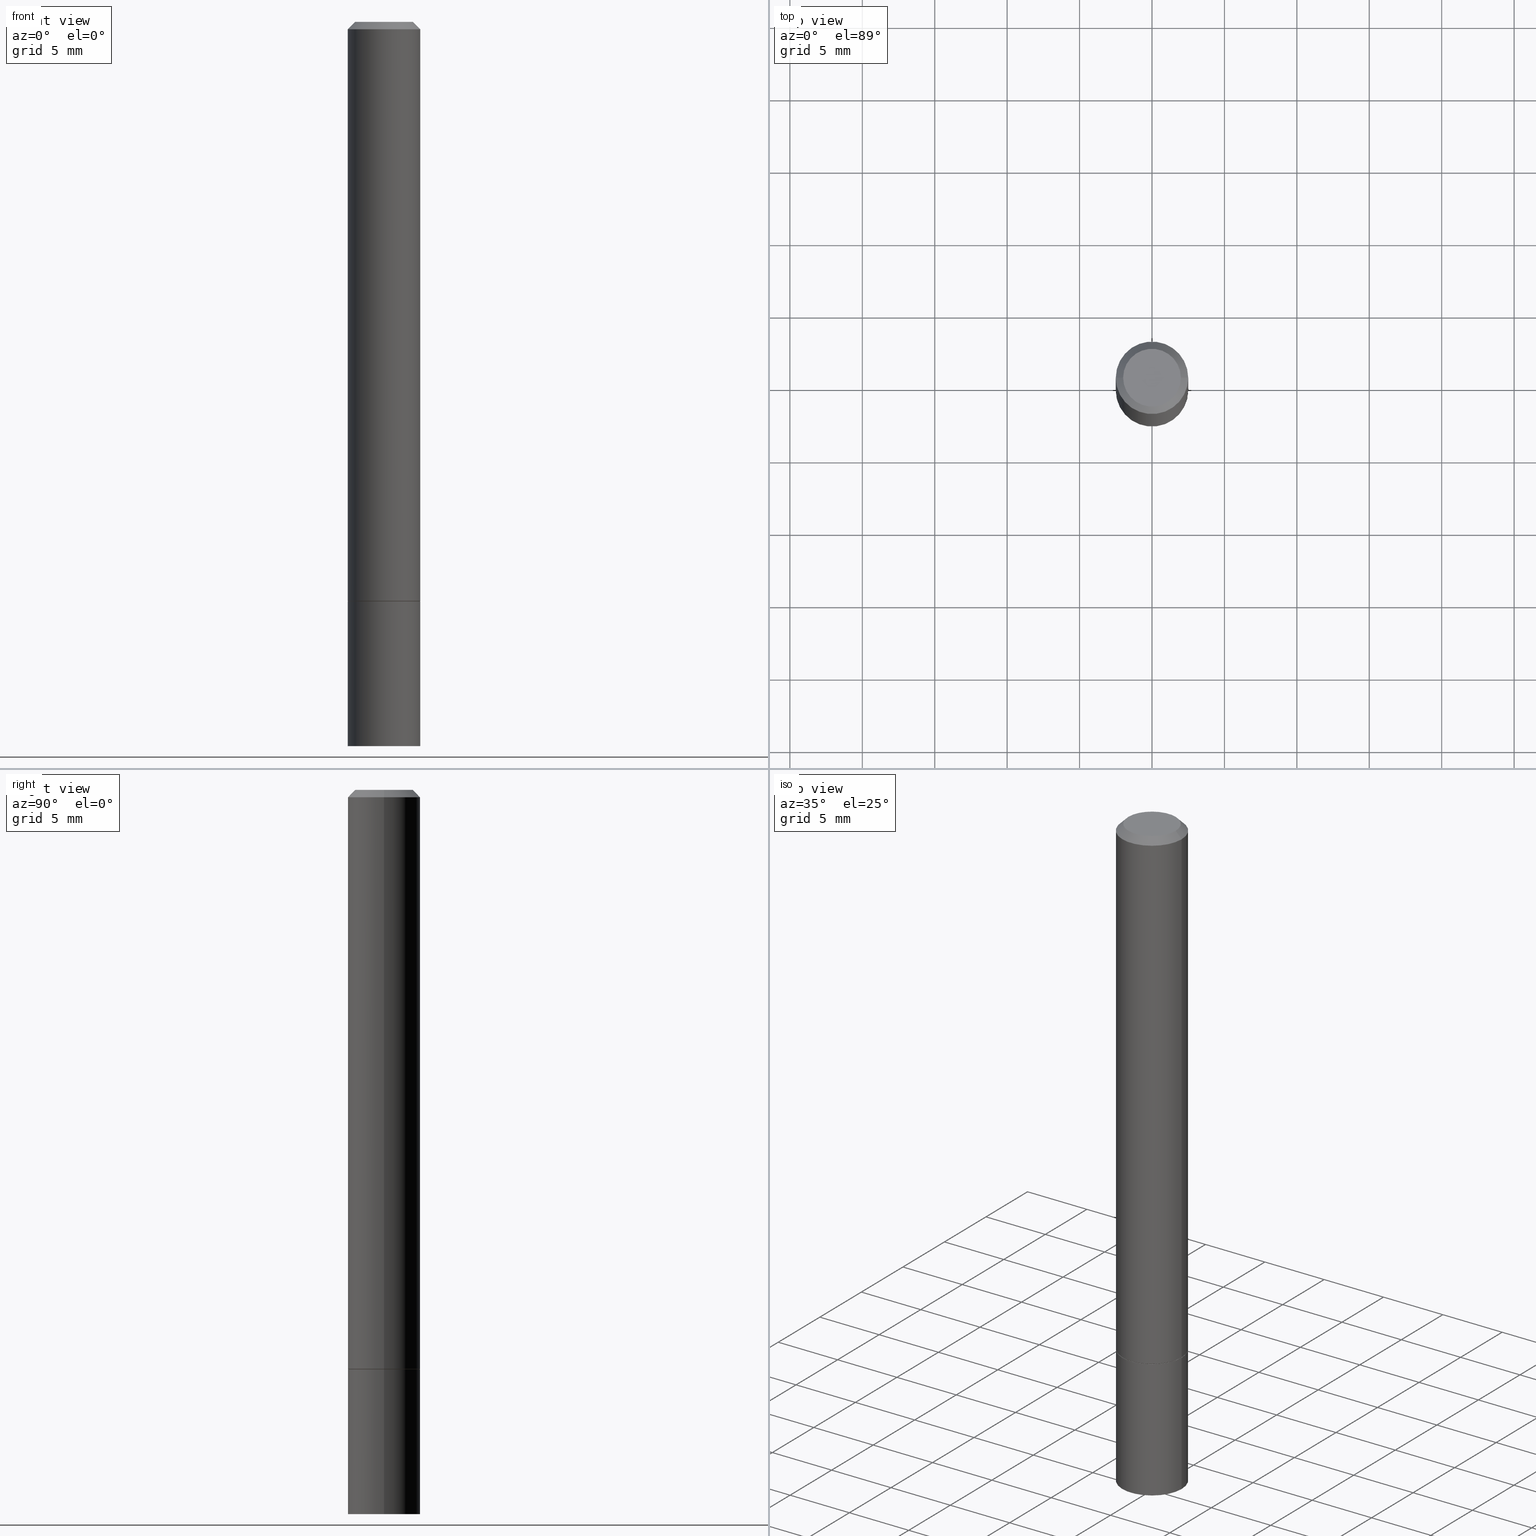
[diagram: canonical four-view strip — front | top / right | iso, engineering-drawing reading convention]
A machine part, canonical four-view strip (front | top / right | iso — engineering-drawing reading convention). The complete STEP part file that produces these views, byte-faithful:
ISO-10303-21;
HEADER;
FILE_DESCRIPTION (( 'STEP AP203' ),
    '1' );
FILE_NAME ('49186.STEP',
    '2024-02-28T16:45:07',
    ( '' ),
    ( '' ),
    'SwSTEP 2.0',
    'SolidWorks 2023',
    '' );
FILE_SCHEMA (( 'CONFIG_CONTROL_DESIGN' ));
ENDSEC;

DATA;
#1 = CARTESIAN_POINT ( 'NONE',  ( 0.09844999999999978768, -7.452456546574688288E-16, -0.02000000000000002123 ) ) ;
#2 = ORIENTED_EDGE ( 'NONE', *, *, #132, .T. ) ;
#3 = ORIENTED_EDGE ( 'NONE', *, *, #104, .F. ) ;
#4 = DIRECTION ( 'NONE',  ( -2.438088387897960049E-29, 3.491481338843145188E-15, 1.000000000000000000 ) ) ;
#5 = LOCAL_TIME ( 11, 45, 7.000000000000000000, #127 ) ;
#6 = LENGTH_MEASURE_WITH_UNIT ( LENGTH_MEASURE( 0.02539999999999999897 ), #310 );
#7 = EDGE_LOOP ( 'NONE', ( #120, #164, #189, #337 ) ) ;
#8 = ORIENTED_EDGE ( 'NONE', *, *, #10, .F. ) ;
#9 = ADVANCED_FACE ( 'NONE', ( #59 ), #166, .F. ) ;
#10 = EDGE_CURVE ( 'NONE', #318, #146, #68, .T. ) ;
#11 = FACE_OUTER_BOUND ( 'NONE', #219, .T. ) ;
#12 = DIRECTION ( 'NONE',  ( -2.445468806185136877E-29, 3.491481338843145188E-15, 1.000000000000000000 ) ) ;
#13 = AXIS2_PLACEMENT_3D ( 'NONE', #38, #16, #230 ) ;
#14 = DIRECTION ( 'NONE',  ( 2.438088387897960049E-29, -3.491481338843145188E-15, -1.000000000000000000 ) ) ;
#15 = DIRECTION ( 'NONE',  ( 1.000000000000000000, -6.982962677686265922E-15, 4.876176775795935793E-29 ) ) ;
#16 = DIRECTION ( 'NONE',  ( -2.445468806185136597E-29, 3.491481338843145583E-15, 1.000000000000000000 ) ) ;
#17 = LINE ( 'NONE', #150, #271 ) ;
#18 = ORIENTED_EDGE ( 'NONE', *, *, #110, .F. ) ;
#19 = APPROVAL_STATUS ( 'not_yet_approved' ) ;
#20 = ADVANCED_FACE ( 'NONE', ( #171 ), #190, .T. ) ;
#21 = FACE_OUTER_BOUND ( 'NONE', #7, .T. ) ;
#22 = VECTOR ( 'NONE', #280, 39.37007874015748143 ) ;
#23 = DATE_TIME_ROLE ( 'classification_date' ) ;
#24 = ORIENTED_EDGE ( 'NONE', *, *, #243, .T. ) ;
#25 = SECURITY_CLASSIFICATION ( '', '', #155 ) ;
#26 = CARTESIAN_POINT ( 'NONE',  ( 3.851124275980353916E-29, -5.498384812410186944E-15, -1.574800000000000422 ) ) ;
#27 = ORIENTED_EDGE ( 'NONE', *, *, #136, .T. ) ;
#28 = CALENDAR_DATE ( 2024, 28, 2 ) ;
#29 = ORIENTED_EDGE ( 'NONE', *, *, #301, .T. ) ;
#30 = DIRECTION ( 'NONE',  ( -2.445468806185136597E-29, 3.491481338843145583E-15, 1.000000000000000000 ) ) ;
#31 = CARTESIAN_POINT ( 'NONE',  ( 3.851124275980353916E-29, -5.498384812410186944E-15, -1.574800000000000422 ) ) ;
#32 = CIRCLE ( 'NONE', #357, 0.09844999999999999585 ) ;
#33 = PRODUCT_DEFINITION_FORMATION_WITH_SPECIFIED_SOURCE ( 'ANY', '', #228, .NOT_KNOWN. ) ;
#34 = PLANE ( 'NONE',  #258 ) ;
#35 = LINE ( 'NONE', #37, #206 ) ;
#36 = EDGE_CURVE ( 'NONE', #343, #318, #35, .T. ) ;
#37 = CARTESIAN_POINT ( 'NONE',  ( -0.09744999999999999496, -4.805960916411969841E-15, -1.574800000000000422 ) ) ;
#38 = CARTESIAN_POINT ( 'NONE',  ( 0.000000000000000000, 0.000000000000000000, 0.000000000000000000 ) ) ;
#39 = AXIS2_PLACEMENT_3D ( 'NONE', #237, #319, #354 ) ;
#40 = CONICAL_SURFACE ( 'NONE', #177, 0.09744999999999999496, 0.7853981633972775267 ) ;
#41 = CARTESIAN_POINT ( 'NONE',  ( 3.851124275980353916E-29, -5.498384812410186944E-15, -1.574800000000000422 ) ) ;
#42 = DIRECTION ( 'NONE',  ( -2.445468806185136597E-29, 3.491481338843145583E-15, 1.000000000000000000 ) ) ;
#43 = LINE ( 'NONE', #210, #126 ) ;
#44 = AXIS2_PLACEMENT_3D ( 'NONE', #276, #223, #85 ) ;
#45 = CARTESIAN_POINT ( 'NONE',  ( 0.000000000000000000, 0.000000000000000000, 0.000000000000000000 ) ) ;
#46 = PERSON_AND_ORGANIZATION_ROLE ( 'design_supplier' ) ;
#47 = LOCAL_TIME ( 11, 45, 7.000000000000000000, #65 ) ;
#48 = LINE ( 'NONE', #163, #114 ) ;
#49 = ORIENTED_EDGE ( 'NONE', *, *, #36, .F. ) ;
#50 = COORDINATED_UNIVERSAL_TIME_OFFSET ( 5, 0, .BEHIND. ) ;
#51 = EDGE_LOOP ( 'NONE', ( #303, #347 ) ) ;
#52 = CARTESIAN_POINT ( 'NONE',  ( 6.874726756182609764E-16, 0.09844999999999311247, -1.968500000000000361 ) ) ;
#53 = SHAPE_DEFINITION_REPRESENTATION ( #173, #100 ) ;
#54 = ADVANCED_FACE ( 'NONE', ( #118 ), #62, .T. ) ;
#55 = ORIENTED_EDGE ( 'NONE', *, *, #143, .T. ) ;
#56 = CARTESIAN_POINT ( 'NONE',  ( 4.890937612370278413E-31, -6.982962677686297772E-17, -0.02000000000000002123 ) ) ;
#57 = ORIENTED_EDGE ( 'NONE', *, *, #339, .T. ) ;
#58 = DIRECTION ( 'NONE',  ( 1.000000000000000000, -6.982962677686264344E-15, 0.000000000000000000 ) ) ;
#59 = FACE_OUTER_BOUND ( 'NONE', #251, .T. ) ;
#60 = AXIS2_PLACEMENT_3D ( 'NONE', #291, #290, #233 ) ;
#61 = ADVANCED_FACE ( 'NONE', ( #109 ), #82, .T. ) ;
#62 = CYLINDRICAL_SURFACE ( 'NONE', #273, 0.09844999999999999585 ) ;
#63 = CALENDAR_DATE ( 2024, 28, 2 ) ;
#64 = DIRECTION ( 'NONE',  ( 1.000000000000000000, -6.982962677686265922E-15, 0.000000000000000000 ) ) ;
#65 = COORDINATED_UNIVERSAL_TIME_OFFSET ( 5, 0, .BEHIND. ) ;
#66 = CARTESIAN_POINT ( 'NONE',  ( 4.890937612370278413E-31, -6.982962677686297772E-17, -0.02000000000000002123 ) ) ;
#67 = CARTESIAN_POINT ( 'NONE',  ( 3.848678807174168313E-29, -5.494893331071342359E-15, -1.573800000000000088 ) ) ;
#68 = CIRCLE ( 'NONE', #44, 0.09844999999999999585 ) ;
#69 = AXIS2_PLACEMENT_3D ( 'NONE', #272, #307, #267 ) ;
#70 = DIRECTION ( 'NONE',  ( -2.445468806185136597E-29, 3.491481338843145583E-15, 1.000000000000000000 ) ) ;
#71 = APPLICATION_CONTEXT ( 'configuration controlled 3d designs of mechanical parts and assemblies' ) ;
#72 = CYLINDRICAL_SURFACE ( 'NONE', #13, 0.09844999999999988483 ) ;
#73 = DIRECTION ( 'NONE',  ( -2.445468806185136597E-29, 3.491481338843145583E-15, 1.000000000000000000 ) ) ;
#74 = EDGE_CURVE ( 'NONE', #200, #343, #135, .T. ) ;
#75 = AXIS2_PLACEMENT_3D ( 'NONE', #92, #151, #88 ) ;
#76 = CC_DESIGN_PERSON_AND_ORGANIZATION_ASSIGNMENT ( #297, #46, ( #33 ) ) ;
#77 = PERSON_AND_ORGANIZATION ( #94, #350 ) ;
#78 = CARTESIAN_POINT ( 'NONE',  ( 3.851124275980353356E-29, -5.498384812410186155E-15, -1.574800000000000200 ) ) ;
#79 = DIRECTION ( 'NONE',  ( -2.445468806185136597E-29, 3.491481338843145583E-15, 1.000000000000000000 ) ) ;
#80 = APPROVAL_STATUS ( 'not_yet_approved' ) ;
#81 = LOCAL_TIME ( 11, 45, 7.000000000000000000, #50 ) ;
#82 = PLANE ( 'NONE',  #236 ) ;
#83 = VECTOR ( 'NONE', #196, 39.37007874015748143 ) ;
#84 = ORIENTED_EDGE ( 'NONE', *, *, #315, .T. ) ;
#85 = DIRECTION ( 'NONE',  ( 1.000000000000000000, -6.982962677686265922E-15, 0.000000000000000000 ) ) ;
#86 = DIRECTION ( 'NONE',  ( 2.445468806185136597E-29, -3.491481338843145583E-15, -1.000000000000000000 ) ) ;
#87 = VERTEX_POINT ( 'NONE', #175 ) ;
#88 = DIRECTION ( 'NONE',  ( 1.000000000000000000, 0.000000000000000000, 0.000000000000000000 ) ) ;
#89 = CC_DESIGN_DATE_AND_TIME_ASSIGNMENT ( #129, #240, ( #325 ) ) ;
#90 = VERTEX_POINT ( 'NONE', #202 ) ;
#91 = CIRCLE ( 'NONE', #238, 0.09844999999999978768 ) ;
#92 = CARTESIAN_POINT ( 'NONE',  ( 0.000000000000000000, 0.000000000000000000, 0.000000000000000000 ) ) ;
#93 = DIRECTION ( 'NONE',  ( -2.445468806185136597E-29, 3.491481338843145583E-15, 1.000000000000000000 ) ) ;
#94 = PERSON ( 'UNSPECIFIED', 'UNSPECIFIED', 'UNSPECIFIED', ('UNSPECIFIED'), ('UNSPECIFIED'), ('UNSPECIFIED') ) ;
#95 = PERSON_AND_ORGANIZATION ( #94, #350 ) ;
#96 = CARTESIAN_POINT ( 'NONE',  ( -0.09844999999999999585, -5.486153590605640426E-15, -1.574800000000000200 ) ) ;
#97 = DIRECTION ( 'NONE',  ( 1.000000000000000000, -6.982962677686264344E-15, 0.000000000000000000 ) ) ;
#98 = AXIS2_PLACEMENT_3D ( 'NONE', #336, #306, #331 ) ;
#99 = MECHANICAL_CONTEXT ( 'NONE', #71, 'mechanical' ) ;
#100 = ADVANCED_BREP_SHAPE_REPRESENTATION ( '49186', ( #117, #364, #75 ), #279 ) ;
#101 = CARTESIAN_POINT ( 'NONE',  ( 0.09844999999999978768, -7.452456546574688288E-16, -0.02000000000000002123 ) ) ;
#102 = PERSON_AND_ORGANIZATION_ROLE ( 'creator' ) ;
#103 = CARTESIAN_POINT ( 'NONE',  ( 0.07844999999999981155, -6.417258612913221441E-16, 4.159044147803931210E-30 ) ) ;
#104 = EDGE_CURVE ( 'NONE', #304, #226, #140, .T. ) ;
#105 = AXIS2_PLACEMENT_3D ( 'NONE', #178, #207, #352 ) ;
#106 = PERSON_AND_ORGANIZATION_ROLE ( 'classification_officer' ) ;
#107 = AXIS2_PLACEMENT_3D ( 'NONE', #31, #4, #115 ) ;
#108 = ORIENTED_EDGE ( 'NONE', *, *, #143, .F. ) ;
#109 = FACE_OUTER_BOUND ( 'NONE', #51, .T. ) ;
#110 = EDGE_CURVE ( 'NONE', #180, #277, #270, .T. ) ;
#111 = DIRECTION ( 'NONE',  ( 1.000000000000000000, -6.982962677686266711E-15, 0.000000000000000000 ) ) ;
#112 = ORIENTED_EDGE ( 'NONE', *, *, #235, .T. ) ;
#113 = VECTOR ( 'NONE', #259, 39.37007874015748143 ) ;
#114 = VECTOR ( 'NONE', #145, 39.37007874015748143 ) ;
#115 = DIRECTION ( 'NONE',  ( 1.000000000000000000, -6.982962677686265922E-15, 4.876176775795935793E-29 ) ) ;
#116 = ORIENTED_EDGE ( 'NONE', *, *, #183, .T. ) ;
#117 = MANIFOLD_SOLID_BREP ( 'Body-Move/Copy2[1]', #199 ) ;
#118 = FACE_OUTER_BOUND ( 'NONE', #342, .T. ) ;
#119 = DIRECTION ( 'NONE',  ( 1.000000000000000000, -6.982962677686265922E-15, 0.000000000000000000 ) ) ;
#120 = ORIENTED_EDGE ( 'NONE', *, *, #74, .T. ) ;
#121 = FACE_OUTER_BOUND ( 'NONE', #344, .T. ) ;
#122 = ADVANCED_FACE ( 'NONE', ( #265 ), #356, .T. ) ;
#123 = CARTESIAN_POINT ( 'NONE',  ( 0.09844999999999999585, -6.874726756182129545E-16, 4.800596035771099214E-30 ) ) ;
#124 = DIRECTION ( 'NONE',  ( -2.445468806185136877E-29, 3.491481338843145188E-15, 1.000000000000000000 ) ) ;
#125 = AXIS2_PLACEMENT_3D ( 'NONE', #147, #152, #205 ) ;
#126 = VECTOR ( 'NONE', #124, 39.37007874015748143 ) ;
#127 = COORDINATED_UNIVERSAL_TIME_OFFSET ( 5, 0, .BEHIND. ) ;
#128 = CARTESIAN_POINT ( 'NONE',  ( 0.09844999999999999585, -7.560453691130944267E-15, -1.968500000000000139 ) ) ;
#129 = DATE_AND_TIME ( #363, #47 ) ;
#130 = AXIS2_PLACEMENT_3D ( 'NONE', #26, #30, #58 ) ;
#131 = APPROVAL_ROLE ( '' ) ;
#132 = EDGE_CURVE ( 'NONE', #146, #318, #335, .T. ) ;
#133 = ORIENTED_EDGE ( 'NONE', *, *, #289, .T. ) ;
#134 = APPROVAL_DATE_TIME ( #159, #203 ) ;
#135 = CIRCLE ( 'NONE', #349, 0.09744999999999999496 ) ;
#136 = EDGE_CURVE ( 'NONE', #249, #90, #32, .T. ) ;
#137 = APPLICATION_PROTOCOL_DEFINITION ( 'international standard', 'config_control_design', 1994, #71 ) ;
#138 = DIRECTION ( 'NONE',  ( 2.438088387897960049E-29, -3.491481338843145188E-15, -1.000000000000000000 ) ) ;
#139 = ORIENTED_EDGE ( 'NONE', *, *, #245, .F. ) ;
#140 = CIRCLE ( 'NONE', #221, 0.07844999999999981155 ) ;
#141 = CIRCLE ( 'NONE', #250, 0.09844999999999999585 ) ;
#142 = ORIENTED_EDGE ( 'NONE', *, *, #284, .F. ) ;
#143 = EDGE_CURVE ( 'NONE', #249, #87, #327, .T. ) ;
#144 = EDGE_LOOP ( 'NONE', ( #133, #334 ) ) ;
#145 = DIRECTION ( 'NONE',  ( 0.7071067811864267805, -2.468850131080992517E-15, 0.7071067811866682540 ) ) ;
#146 = VERTEX_POINT ( 'NONE', #153 ) ;
#147 = CARTESIAN_POINT ( 'NONE',  ( 0.000000000000000000, 0.000000000000000000, 0.000000000000000000 ) ) ;
#148 = DIMENSIONAL_EXPONENTS ( 1.000000000000000000, 0.000000000000000000, 0.000000000000000000, 0.000000000000000000, 0.000000000000000000, 0.000000000000000000, 0.000000000000000000 ) ;
#149 = DIRECTION ( 'NONE',  ( 1.000000000000000000, -6.982962677686264344E-15, 0.000000000000000000 ) ) ;
#150 = CARTESIAN_POINT ( 'NONE',  ( 0.09844999999999988483, -6.874726756182121656E-16, 4.800596035771093609E-30 ) ) ;
#151 = DIRECTION ( 'NONE',  ( 0.000000000000000000, 0.000000000000000000, 1.000000000000000000 ) ) ;
#152 = DIRECTION ( 'NONE',  ( -2.445468806185136597E-29, 3.491481338843145583E-15, 1.000000000000000000 ) ) ;
#153 = CARTESIAN_POINT ( 'NONE',  ( 0.09844999999999999585, -6.182366006689555708E-15, -1.573800000000000088 ) ) ;
#154 = DIRECTION ( 'NONE',  ( -2.445468806185136597E-29, 3.491481338843145583E-15, 1.000000000000000000 ) ) ;
#155 = SECURITY_CLASSIFICATION_LEVEL ( 'unclassified' ) ;
#156 = AXIS2_PLACEMENT_3D ( 'NONE', #56, #86, #195 ) ;
#157 = PERSON_AND_ORGANIZATION ( #94, #350 ) ;
#158 = APPROVAL_ROLE ( '' ) ;
#159 = DATE_AND_TIME ( #28, #161 ) ;
#160 = AXIS2_PLACEMENT_3D ( 'NONE', #67, #42, #119 ) ;
#161 = LOCAL_TIME ( 11, 45, 7.000000000000000000, #338 ) ;
#162 =( NAMED_UNIT ( * ) SI_UNIT ( $, .STERADIAN. ) SOLID_ANGLE_UNIT ( ) );
#163 = CARTESIAN_POINT ( 'NONE',  ( 0.09744999999999999496, -6.178874525350713489E-15, -1.574800000000000422 ) ) ;
#164 = ORIENTED_EDGE ( 'NONE', *, *, #36, .T. ) ;
#165 =( CONVERSION_BASED_UNIT ( 'INCH', #6 ) LENGTH_UNIT ( ) NAMED_UNIT ( #148 ) );
#166 = PLANE ( 'NONE',  #107 ) ;
#167 = DIRECTION ( 'NONE',  ( -1.000000000000000000, 6.982962677686266711E-15, 0.000000000000000000 ) ) ;
#168 = VECTOR ( 'NONE', #359, 39.37007874015748143 ) ;
#169 = APPROVAL_PERSON_ORGANIZATION ( #241, #355, #131 ) ;
#170 = CARTESIAN_POINT ( 'NONE',  ( -0.09844999999999999585, -2.082832155568281168E-15, -1.573800000000000088 ) ) ;
#171 = FACE_OUTER_BOUND ( 'NONE', #275, .T. ) ;
#172 = CARTESIAN_POINT ( 'NONE',  ( 0.000000000000000000, 0.000000000000000000, 0.000000000000000000 ) ) ;
#173 = PRODUCT_DEFINITION_SHAPE ( 'NONE', 'NONE',  #325 ) ;
#174 = ADVANCED_FACE ( 'NONE', ( #121 ), #72, .T. ) ;
#175 = CARTESIAN_POINT ( 'NONE',  ( 0.09844999999999999585, -6.185857488028398715E-15, -1.574800000000000200 ) ) ;
#176 = LINE ( 'NONE', #292, #168 ) ;
#177 = AXIS2_PLACEMENT_3D ( 'NONE', #41, #73, #149 ) ;
#178 = CARTESIAN_POINT ( 'NONE',  ( 4.813905344975441835E-29, -6.872981015512731707E-15, -1.968500000000000139 ) ) ;
#179 = CARTESIAN_POINT ( 'NONE',  ( 3.851124275980353916E-29, -5.498384812410186944E-15, -1.574800000000000422 ) ) ;
#180 = VERTEX_POINT ( 'NONE', #101 ) ;
#181 = FACE_OUTER_BOUND ( 'NONE', #144, .T. ) ;
#182 = CARTESIAN_POINT ( 'NONE',  ( -0.09844999999999978768, 6.176430488413484730E-16, -0.02000000000000002123 ) ) ;
#183 = EDGE_CURVE ( 'NONE', #90, #249, #211, .T. ) ;
#184 = DIRECTION ( 'NONE',  ( 1.000000000000000000, -6.982962677686265922E-15, 0.000000000000000000 ) ) ;
#185 = ORIENTED_EDGE ( 'NONE', *, *, #315, .F. ) ;
#186 = CIRCLE ( 'NONE', #130, 0.09744999999999999496 ) ;
#187 = CC_DESIGN_PERSON_AND_ORGANIZATION_ASSIGNMENT ( #351, #201, ( #325 ) ) ;
#188 = EDGE_LOOP ( 'NONE', ( #27, #84, #365, #108 ) ) ;
#189 = ORIENTED_EDGE ( 'NONE', *, *, #132, .F. ) ;
#190 = CONICAL_SURFACE ( 'NONE', #293, 0.09844999999999978768, 0.7853981633974471688 ) ;
#191 = ORIENTED_EDGE ( 'NONE', *, *, #284, .T. ) ;
#192 = ORIENTED_EDGE ( 'NONE', *, *, #235, .F. ) ;
#193 = ADVANCED_FACE ( 'NONE', ( #239 ), #232, .T. ) ;
#194 = DIRECTION ( 'NONE',  ( 2.445468806185136597E-29, -3.491481338843145583E-15, -1.000000000000000000 ) ) ;
#195 = DIRECTION ( 'NONE',  ( -1.000000000000000000, 6.982962677686266711E-15, 0.000000000000000000 ) ) ;
#196 = DIRECTION ( 'NONE',  ( -2.445468806185136877E-29, 3.491481338843145188E-15, 1.000000000000000000 ) ) ;
#197 = APPLICATION_CONTEXT ( 'configuration controlled 3d designs of mechanical parts and assemblies' ) ;
#198 = VERTEX_POINT ( 'NONE', #96 ) ;
#199 = CLOSED_SHELL ( 'NONE', ( #193, #61, #266, #54 ) ) ;
#200 = VERTEX_POINT ( 'NONE', #261 ) ;
#201 = PERSON_AND_ORGANIZATION_ROLE ( 'creator' ) ;
#202 = CARTESIAN_POINT ( 'NONE',  ( -0.09844999999999999585, -5.486153590605640426E-15, -1.968500000000000139 ) ) ;
#203 = APPROVAL ( #80, 'UNSPECIFIED' ) ;
#204 = PERSON_AND_ORGANIZATION_ROLE ( 'design_owner' ) ;
#205 = DIRECTION ( 'NONE',  ( 1.000000000000000000, -6.982962677686266711E-15, 4.876176775795936353E-29 ) ) ;
#206 = VECTOR ( 'NONE', #254, 39.37007874015748143 ) ;
#207 = DIRECTION ( 'NONE',  ( -2.445468806185136597E-29, 3.491481338843145583E-15, 1.000000000000000000 ) ) ;
#208 = CONICAL_SURFACE ( 'NONE', #156, 0.09844999999999978768, 0.7853981633974471688 ) ;
#209 = FACE_OUTER_BOUND ( 'NONE', #246, .T. ) ;
#210 = CARTESIAN_POINT ( 'NONE',  ( -0.09844999999999988483, 6.995293233558178146E-16, -4.842691596355949137E-30 ) ) ;
#211 = CIRCLE ( 'NONE', #105, 0.09844999999999999585 ) ;
#212 = COORDINATED_UNIVERSAL_TIME_OFFSET ( 5, 0, .BEHIND. ) ;
#213 = ORIENTED_EDGE ( 'NONE', *, *, #104, .T. ) ;
#214 = CALENDAR_DATE ( 2024, 28, 2 ) ;
#215 = CC_DESIGN_PERSON_AND_ORGANIZATION_ASSIGNMENT ( #95, #204, ( #228 ) ) ;
#216 = ADVANCED_FACE ( 'NONE', ( #21 ), #264, .T. ) ;
#217 =( NAMED_UNIT ( * ) PLANE_ANGLE_UNIT ( ) SI_UNIT ( $, .RADIAN. ) );
#218 = ORIENTED_EDGE ( 'NONE', *, *, #243, .F. ) ;
#219 = EDGE_LOOP ( 'NONE', ( #213, #191 ) ) ;
#220 = CC_DESIGN_PERSON_AND_ORGANIZATION_ASSIGNMENT ( #77, #102, ( #33 ) ) ;
#221 = AXIS2_PLACEMENT_3D ( 'NONE', #45, #326, #15 ) ;
#222 = CIRCLE ( 'NONE', #69, 0.09844999999999999585 ) ;
#223 = DIRECTION ( 'NONE',  ( -2.445468806185136597E-29, 3.491481338843145583E-15, 1.000000000000000000 ) ) ;
#224 = CARTESIAN_POINT ( 'NONE',  ( 5.478134220644862595E-16, 0.07844999999999981155, -2.739067110322441158E-16 ) ) ;
#225 = CARTESIAN_POINT ( 'NONE',  ( 4.890937612370278413E-31, -6.982962677686297772E-17, -0.02000000000000002123 ) ) ;
#226 = VERTEX_POINT ( 'NONE', #103 ) ;
#227 = APPROVAL_DATE_TIME ( #255, #252 ) ;
#228 = PRODUCT ( '49186', '49186', '', ( #99 ) ) ;
#229 = APPROVAL_PERSON_ORGANIZATION ( #157, #203, #158 ) ;
#230 = DIRECTION ( 'NONE',  ( 1.000000000000000000, -6.982962677686266711E-15, 4.876176775795936353E-29 ) ) ;
#231 = DIRECTION ( 'NONE',  ( -1.000000000000000000, 6.982962677686265922E-15, -4.876176775795935793E-29 ) ) ;
#232 = CYLINDRICAL_SURFACE ( 'NONE', #60, 0.09844999999999999585 ) ;
#233 = DIRECTION ( 'NONE',  ( 1.000000000000000000, -6.982962677686266711E-15, 4.876176775795936353E-29 ) ) ;
#234 = CC_DESIGN_PERSON_AND_ORGANIZATION_ASSIGNMENT ( #242, #106, ( #25 ) ) ;
#235 = EDGE_CURVE ( 'NONE', #146, #180, #17, .T. ) ;
#236 = AXIS2_PLACEMENT_3D ( 'NONE', #52, #138, #360 ) ;
#237 = CARTESIAN_POINT ( 'NONE',  ( 4.890937612370278413E-31, -6.982962677686297772E-17, -0.02000000000000002123 ) ) ;
#238 = AXIS2_PLACEMENT_3D ( 'NONE', #66, #281, #111 ) ;
#239 = FACE_OUTER_BOUND ( 'NONE', #188, .T. ) ;
#240 = DATE_TIME_ROLE ( 'creation_date' ) ;
#241 = PERSON_AND_ORGANIZATION ( #94, #350 ) ;
#242 = PERSON_AND_ORGANIZATION ( #94, #350 ) ;
#243 = EDGE_CURVE ( 'NONE', #304, #277, #176, .T. ) ;
#244 = EDGE_LOOP ( 'NONE', ( #142, #57, #282, #218 ) ) ;
#245 = EDGE_CURVE ( 'NONE', #318, #277, #43, .T. ) ;
#246 = EDGE_LOOP ( 'NONE', ( #49, #247, #29, #8 ) ) ;
#247 = ORIENTED_EDGE ( 'NONE', *, *, #362, .T. ) ;
#248 = ORIENTED_EDGE ( 'NONE', *, *, #278, .F. ) ;
#249 = VERTEX_POINT ( 'NONE', #128 ) ;
#250 = AXIS2_PLACEMENT_3D ( 'NONE', #78, #79, #184 ) ;
#251 = EDGE_LOOP ( 'NONE', ( #311, #308 ) ) ;
#252 = APPROVAL ( #19, 'UNSPECIFIED' ) ;
#253 = LINE ( 'NONE', #1, #22 ) ;
#254 = DIRECTION ( 'NONE',  ( -0.7071067811864267805, 7.493145998869918709E-15, 0.7071067811866682540 ) ) ;
#255 = DATE_AND_TIME ( #63, #5 ) ;
#256 = DIRECTION ( 'NONE',  ( 1.000000000000000000, -6.982962677686266711E-15, 4.876176775795936353E-29 ) ) ;
#257 = APPROVAL_ROLE ( '' ) ;
#258 = AXIS2_PLACEMENT_3D ( 'NONE', #224, #14, #231 ) ;
#259 = DIRECTION ( 'NONE',  ( -2.445468806185136877E-29, 3.491481338843145188E-15, 1.000000000000000000 ) ) ;
#260 = LINE ( 'NONE', #321, #83 ) ;
#261 = CARTESIAN_POINT ( 'NONE',  ( 0.09744999999999999496, -6.178874525350713489E-15, -1.574800000000000422 ) ) ;
#262 = ADVANCED_FACE ( 'NONE', ( #209 ), #40, .T. ) ;
#263 = DIRECTION ( 'NONE',  ( -2.445468806185136597E-29, 3.491481338843145583E-15, 1.000000000000000000 ) ) ;
#264 = CONICAL_SURFACE ( 'NONE', #302, 0.09744999999999999496, 0.7853981633972775267 ) ;
#265 = FACE_OUTER_BOUND ( 'NONE', #340, .T. ) ;
#266 = ADVANCED_FACE ( 'NONE', ( #181 ), #294, .F. ) ;
#267 = DIRECTION ( 'NONE',  ( 1.000000000000000000, -6.982962677686265922E-15, 0.000000000000000000 ) ) ;
#268 = DIRECTION ( 'NONE',  ( 1.000000000000000000, -6.982962677686265922E-15, 4.876176775795935793E-29 ) ) ;
#269 = ORIENTED_EDGE ( 'NONE', *, *, #333, .F. ) ;
#270 = CIRCLE ( 'NONE', #39, 0.09844999999999978768 ) ;
#271 = VECTOR ( 'NONE', #12, 39.37007874015748143 ) ;
#272 = CARTESIAN_POINT ( 'NONE',  ( 3.851124275980353356E-29, -5.498384812410186155E-15, -1.574800000000000200 ) ) ;
#273 = AXIS2_PLACEMENT_3D ( 'NONE', #172, #286, #256 ) ;
#274 = LOCAL_TIME ( 11, 45, 7.000000000000000000, #212 ) ;
#275 = EDGE_LOOP ( 'NONE', ( #346, #3, #24, #314 ) ) ;
#276 = CARTESIAN_POINT ( 'NONE',  ( 3.848678807174168313E-29, -5.494893331071342359E-15, -1.573800000000000088 ) ) ;
#277 = VERTEX_POINT ( 'NONE', #182 ) ;
#278 = EDGE_CURVE ( 'NONE', #198, #87, #222, .T. ) ;
#279 =( GEOMETRIC_REPRESENTATION_CONTEXT ( 3 ) GLOBAL_UNCERTAINTY_ASSIGNED_CONTEXT ( ( #298 ) ) GLOBAL_UNIT_ASSIGNED_CONTEXT ( ( #165, #217, #162 ) ) REPRESENTATION_CONTEXT ( 'NONE', 'WORKASPACE' ) );
#280 = DIRECTION ( 'NONE',  ( 0.7071067811865466846, -7.319954787623252890E-15, -0.7071067811865483499 ) ) ;
#281 = DIRECTION ( 'NONE',  ( -2.445468806185136597E-29, 3.491481338843145583E-15, 1.000000000000000000 ) ) ;
#282 = ORIENTED_EDGE ( 'NONE', *, *, #110, .T. ) ;
#283 = PRODUCT_RELATED_PRODUCT_CATEGORY ( 'detail', '', ( #228 ) ) ;
#284 = EDGE_CURVE ( 'NONE', #226, #304, #358, .T. ) ;
#285 = CARTESIAN_POINT ( 'NONE',  ( -0.07844999999999981155, 5.827282354529173170E-16, -3.953055038153090764E-30 ) ) ;
#286 = DIRECTION ( 'NONE',  ( -2.445468806185136597E-29, 3.491481338843145583E-15, 1.000000000000000000 ) ) ;
#287 = CARTESIAN_POINT ( 'NONE',  ( 4.813905344975441835E-29, -6.872981015512731707E-15, -1.968500000000000139 ) ) ;
#288 = APPROVAL_PERSON_ORGANIZATION ( #320, #252, #257 ) ;
#289 = EDGE_CURVE ( 'NONE', #87, #198, #141, .T. ) ;
#290 = DIRECTION ( 'NONE',  ( -2.445468806185136597E-29, 3.491481338843145583E-15, 1.000000000000000000 ) ) ;
#291 = CARTESIAN_POINT ( 'NONE',  ( 0.000000000000000000, 0.000000000000000000, 0.000000000000000000 ) ) ;
#292 = CARTESIAN_POINT ( 'NONE',  ( -0.09844999999999978768, 6.176430488413484730E-16, -0.02000000000000002123 ) ) ;
#293 = AXIS2_PLACEMENT_3D ( 'NONE', #225, #194, #167 ) ;
#294 = PLANE ( 'NONE',  #98 ) ;
#295 = CC_DESIGN_DATE_AND_TIME_ASSIGNMENT ( #332, #23, ( #25 ) ) ;
#296 = CARTESIAN_POINT ( 'NONE',  ( 0.000000000000000000, 0.000000000000000000, 0.000000000000000000 ) ) ;
#297 = PERSON_AND_ORGANIZATION ( #94, #350 ) ;
#298 = UNCERTAINTY_MEASURE_WITH_UNIT (LENGTH_MEASURE( 1.000000000000000082E-05 ), #165, 'distance_accuracy_value', 'NONE');
#299 = CALENDAR_DATE ( 2024, 28, 2 ) ;
#300 = CLOSED_SHELL ( 'NONE', ( #216, #174, #353, #20, #122, #262, #9, #312 ) ) ;
#301 = EDGE_CURVE ( 'NONE', #200, #146, #48, .T. ) ;
#302 = AXIS2_PLACEMENT_3D ( 'NONE', #322, #263, #97 ) ;
#303 = ORIENTED_EDGE ( 'NONE', *, *, #136, .F. ) ;
#304 = VERTEX_POINT ( 'NONE', #285 ) ;
#305 = APPROVAL_DATE_TIME ( #330, #355 ) ;
#306 = DIRECTION ( 'NONE',  ( 2.438088387897960049E-29, -3.491481338843145188E-15, -1.000000000000000000 ) ) ;
#307 = DIRECTION ( 'NONE',  ( -2.445468806185136597E-29, 3.491481338843145583E-15, 1.000000000000000000 ) ) ;
#308 = ORIENTED_EDGE ( 'NONE', *, *, #362, .F. ) ;
#309 = CC_DESIGN_APPROVAL ( #355, ( #33 ) ) ;
#310 =( LENGTH_UNIT ( ) NAMED_UNIT ( * ) SI_UNIT ( $, .METRE. ) );
#311 = ORIENTED_EDGE ( 'NONE', *, *, #74, .F. ) ;
#312 = ADVANCED_FACE ( 'NONE', ( #11 ), #34, .F. ) ;
#313 = ORIENTED_EDGE ( 'NONE', *, *, #245, .T. ) ;
#314 = ORIENTED_EDGE ( 'NONE', *, *, #333, .T. ) ;
#315 = EDGE_CURVE ( 'NONE', #90, #198, #260, .T. ) ;
#316 = CC_DESIGN_APPROVAL ( #252, ( #325 ) ) ;
#317 = APPLICATION_PROTOCOL_DEFINITION ( 'international standard', 'config_control_design', 1994, #197 ) ;
#318 = VERTEX_POINT ( 'NONE', #170 ) ;
#319 = DIRECTION ( 'NONE',  ( -2.445468806185136597E-29, 3.491481338843145583E-15, 1.000000000000000000 ) ) ;
#320 = PERSON_AND_ORGANIZATION ( #94, #350 ) ;
#321 = CARTESIAN_POINT ( 'NONE',  ( -0.09844999999999999585, 6.995293233558186035E-16, -4.842691596355954042E-30 ) ) ;
#322 = CARTESIAN_POINT ( 'NONE',  ( 3.851124275980353916E-29, -5.498384812410186944E-15, -1.574800000000000422 ) ) ;
#323 = AXIS2_PLACEMENT_3D ( 'NONE', #296, #154, #268 ) ;
#324 = DIRECTION ( 'NONE',  ( 1.000000000000000000, -6.982962677686264344E-15, 0.000000000000000000 ) ) ;
#325 = PRODUCT_DEFINITION ( 'UNKNOWN', '', #33, #328 ) ;
#326 = DIRECTION ( 'NONE',  ( -2.445468806185136597E-29, 3.491481338843145583E-15, 1.000000000000000000 ) ) ;
#327 = LINE ( 'NONE', #123, #113 ) ;
#328 = DESIGN_CONTEXT ( 'detailed design', #197, 'design' ) ;
#329 = CC_DESIGN_APPROVAL ( #203, ( #25 ) ) ;
#330 = DATE_AND_TIME ( #299, #81 ) ;
#331 = DIRECTION ( 'NONE',  ( -1.000000000000000000, 6.982962677686265922E-15, -4.876176775795935793E-29 ) ) ;
#332 = DATE_AND_TIME ( #214, #274 ) ;
#333 = EDGE_CURVE ( 'NONE', #277, #180, #91, .T. ) ;
#334 = ORIENTED_EDGE ( 'NONE', *, *, #278, .T. ) ;
#335 = CIRCLE ( 'NONE', #160, 0.09844999999999999585 ) ;
#336 = CARTESIAN_POINT ( 'NONE',  ( 6.874726756182513129E-16, 0.09844999999999450024, -1.574800000000000422 ) ) ;
#337 = ORIENTED_EDGE ( 'NONE', *, *, #301, .F. ) ;
#338 = COORDINATED_UNIVERSAL_TIME_OFFSET ( 5, 0, .BEHIND. ) ;
#339 = EDGE_CURVE ( 'NONE', #226, #180, #253, .T. ) ;
#340 = EDGE_LOOP ( 'NONE', ( #139, #348, #112, #269 ) ) ;
#341 = FACE_OUTER_BOUND ( 'NONE', #244, .T. ) ;
#342 = EDGE_LOOP ( 'NONE', ( #185, #116, #55, #248 ) ) ;
#343 = VERTEX_POINT ( 'NONE', #366 ) ;
#344 = EDGE_LOOP ( 'NONE', ( #2, #313, #18, #192 ) ) ;
#345 = CC_DESIGN_SECURITY_CLASSIFICATION ( #25, ( #33 ) ) ;
#346 = ORIENTED_EDGE ( 'NONE', *, *, #339, .F. ) ;
#347 = ORIENTED_EDGE ( 'NONE', *, *, #183, .F. ) ;
#348 = ORIENTED_EDGE ( 'NONE', *, *, #10, .T. ) ;
#349 = AXIS2_PLACEMENT_3D ( 'NONE', #179, #70, #324 ) ;
#350 = ORGANIZATION ( 'UNSPECIFIED', 'UNSPECIFIED', '' ) ;
#351 = PERSON_AND_ORGANIZATION ( #94, #350 ) ;
#352 = DIRECTION ( 'NONE',  ( 1.000000000000000000, -6.982962677686265922E-15, 0.000000000000000000 ) ) ;
#353 = ADVANCED_FACE ( 'NONE', ( #341 ), #208, .T. ) ;
#354 = DIRECTION ( 'NONE',  ( 1.000000000000000000, -6.982962677686266711E-15, 0.000000000000000000 ) ) ;
#355 = APPROVAL ( #361, 'UNSPECIFIED' ) ;
#356 = CYLINDRICAL_SURFACE ( 'NONE', #125, 0.09844999999999988483 ) ;
#357 = AXIS2_PLACEMENT_3D ( 'NONE', #287, #93, #64 ) ;
#358 = CIRCLE ( 'NONE', #323, 0.07844999999999981155 ) ;
#359 = DIRECTION ( 'NONE',  ( -0.7071067811865466846, 2.468850131082247989E-15, -0.7071067811865483499 ) ) ;
#360 = DIRECTION ( 'NONE',  ( -1.000000000000000000, 6.982962677686265922E-15, -4.876176775795935793E-29 ) ) ;
#361 = APPROVAL_STATUS ( 'not_yet_approved' ) ;
#362 = EDGE_CURVE ( 'NONE', #343, #200, #186, .T. ) ;
#363 = CALENDAR_DATE ( 2024, 28, 2 ) ;
#364 = MANIFOLD_SOLID_BREP ( 'Body-Move/Copy2[2]', #300 ) ;
#365 = ORIENTED_EDGE ( 'NONE', *, *, #289, .F. ) ;
#366 = CARTESIAN_POINT ( 'NONE',  ( -0.09744999999999999496, -4.800662462063746650E-15, -1.574800000000000422 ) ) ;
ENDSEC;
END-ISO-10303-21;
